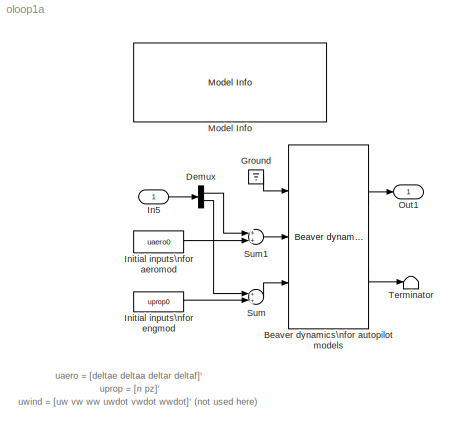
MODEL oloop1a
KIND model
BLOCK [Reference] Beaver dynamics\nfor autopilot models  REF=fdclib10/Beaver dynamics\nfor autopilot models
  Ports = [3, 2]
  SID = 2
  SourceBlock = fdclib10/Beaver dynamics\nfor autopilot models
  SourceType = SubSystem
BLOCK [Demux] Demux
  Outputs = [4 2]
  Ports = [1, 2]
  SID = 3
BLOCK [Ground] Ground
  SID = 4
BLOCK [Inport] In5
  IconDisplay = Port number
  SID = 1
BLOCK [Constant] Initial inputs\nfor aeromod
  SID = 5
  Value = uaero0
BLOCK [Constant] Initial inputs\nfor engmod
  SID = 6
  Value = uprop0
BLOCK [Reference] Model Info  REF=simulink3/Signals\n& Systems/Model Info
  BlockCM = none
  DisplayStringWithTags = Test system to validate nonlinear\nopen-loop simulations of the 'Beaver'.\nUsed by OPENLOOP.M.\n\nM.O. Rauw, March 2004
  Frame = on
  HorizontalTextAlignment = Center
  InitialBlockCM = none
  LeftAlignmentValue = 0.5
  MaskDisplayString = Test system to validate nonlinear\\nopen-loop simulations of the 'Beaver'.\\nUsed by OPENLOOP.M.\\n\\nM.O. Rauw, March 2004
  Ports = []
  SID = 7
  SourceBlock = simulink3/Signals\n& Systems/Model Info
  SourceBlockDiagram = oloop1a
  SourceProductBaseCode = SL
  SourceProductName = Simulink
  SourceType = CMBlock
  TagMaxNumber = 20
BLOCK [Outport] Out1
  IconDisplay = Port number
  SID = 11
BLOCK [Sum] Sum
  Ports = [2, 1]
  SID = 8
BLOCK [Sum] Sum1
  Ports = [2, 1]
  SID = 9
BLOCK [Terminator] Terminator
  SID = 10
ANNOTATION (root): uaero = [deltae deltaa deltar deltaf]'
ANNOTATION (root): uprop = [n pz]'
ANNOTATION (root): uwind = [uw vw ww uwdot vwdot wwdot]' (not used here)
LINE Beaver dynamics\nfor autopilot models:1 -> Out1:1
LINE Beaver dynamics\nfor autopilot models:2 -> Terminator:1
LINE Demux:1 -> Sum1:1
LINE Demux:2 -> Sum:1
LINE Ground:1 -> Beaver dynamics\nfor autopilot models:1
LINE In5:1 -> Demux:1
LINE Initial inputs\nfor aeromod:1 -> Sum1:2
LINE Initial inputs\nfor engmod:1 -> Sum:2
LINE Sum1:1 -> Beaver dynamics\nfor autopilot models:2
LINE Sum:1 -> Beaver dynamics\nfor autopilot models:3
